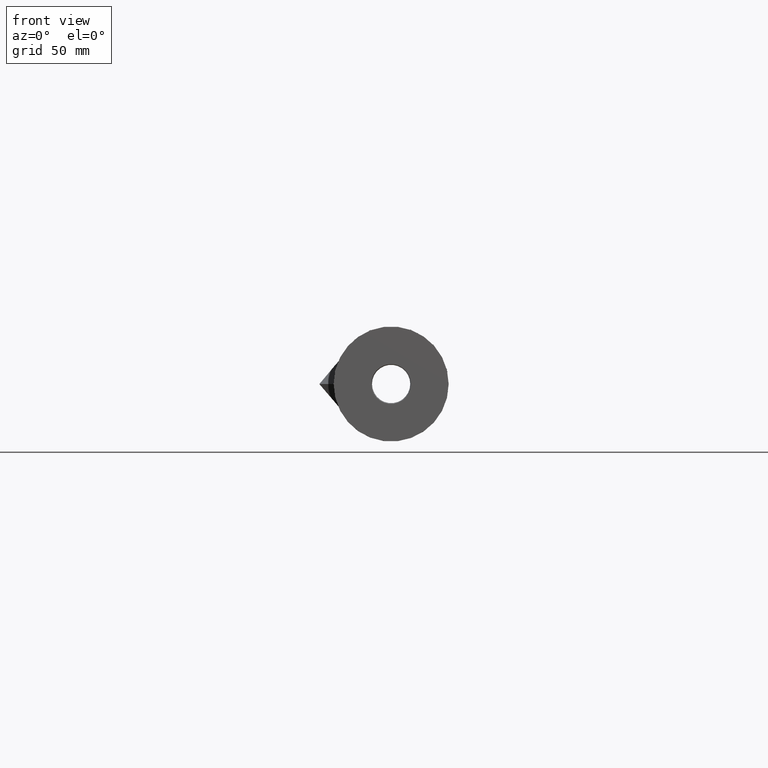
[diagram: clean part render]
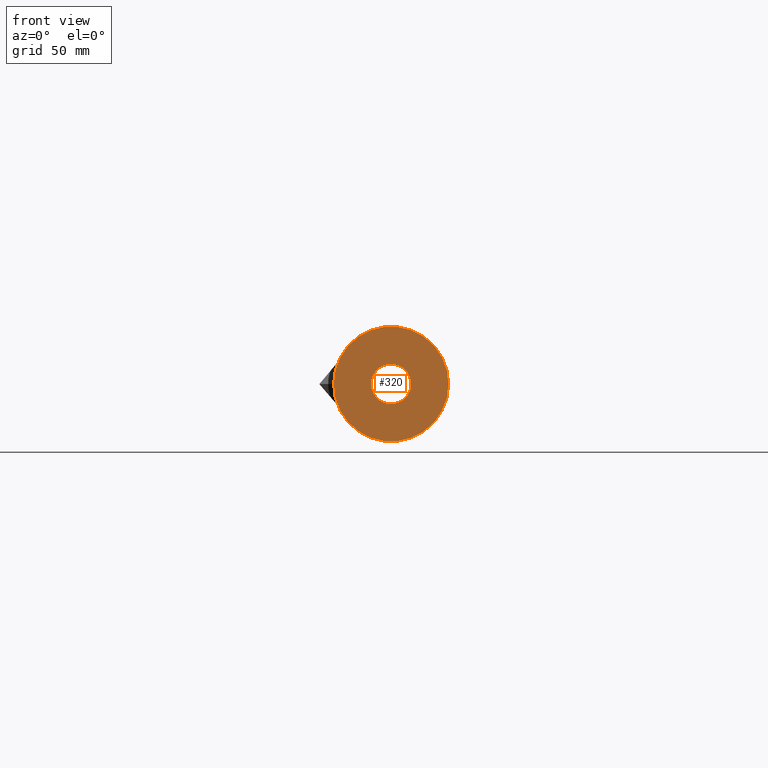
[diagram: same view with one face highlighted and labeled with its STEP entity id]
A machine part, front view. The second image highlights one B-rep face of the part: STEP entity #320.
In plain terms, the highlighted planar face has unit normal (0, -1, 0).
Its self-contained STEP definition (entity closure, byte-faithful):
#194=CARTESIAN_POINT('',(0.584437393620792,0.0,0.0));
#195=VERTEX_POINT('',#194);
#196=CARTESIAN_POINT('',(0.0,0.0,0.0));
#197=DIRECTION('',(0.0,1.0,0.0));
#198=DIRECTION('',(1.0,0.0,0.0));
#199=AXIS2_PLACEMENT_3D('',#196,#197,#198);
#200=CIRCLE('',#199,0.584437393620792);
#201=EDGE_CURVE('',#195,#195,#200,.T.);
#294=CARTESIAN_POINT('',(1.690000000000000,0.0,0.0));
#295=VERTEX_POINT('',#294);
#296=CARTESIAN_POINT('',(0.0,0.0,0.0));
#297=DIRECTION('',(0.0,-1.0,0.0));
#298=DIRECTION('',(1.0,0.0,0.0));
#299=AXIS2_PLACEMENT_3D('',#296,#297,#298);
#300=CIRCLE('',#299,1.690000000000000);
#301=EDGE_CURVE('',#295,#295,#300,.T.);
#309=CARTESIAN_POINT('',(0.845000000000000,0.0,0.0));
#310=DIRECTION('',(0.0,-1.0,0.0));
#311=DIRECTION('',(0.0,0.0,-1.0));
#312=AXIS2_PLACEMENT_3D('',#309,#310,#311);
#313=PLANE('',#312);
#314=ORIENTED_EDGE('',*,*,#301,.T.);
#315=EDGE_LOOP('',(#314));
#316=FACE_OUTER_BOUND('',#315,.T.);
#317=ORIENTED_EDGE('',*,*,#201,.T.);
#318=EDGE_LOOP('',(#317));
#319=FACE_BOUND('',#318,.T.);
#320=ADVANCED_FACE('',(#316,#319),#313,.T.);